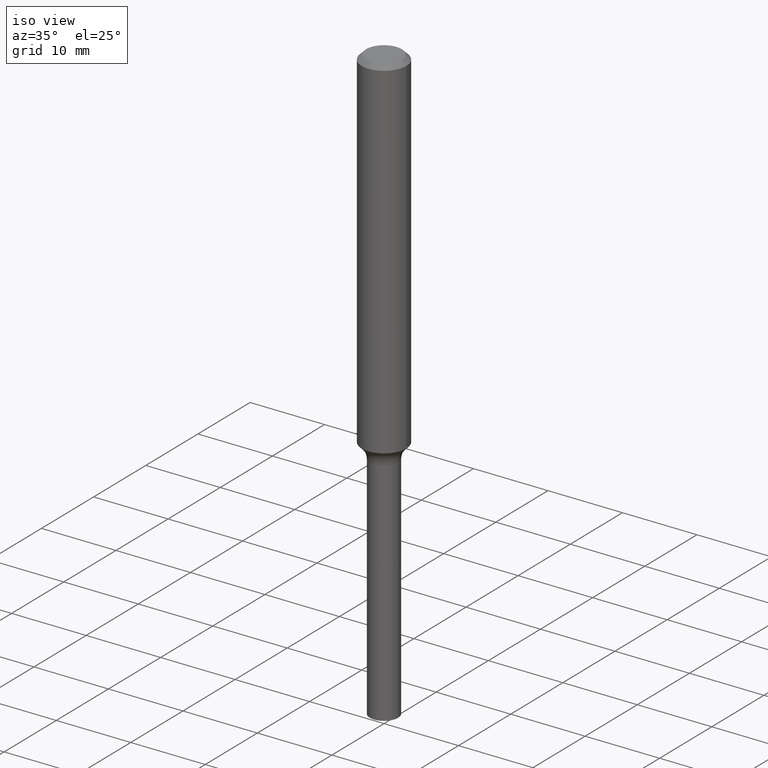
[diagram: clean part render]
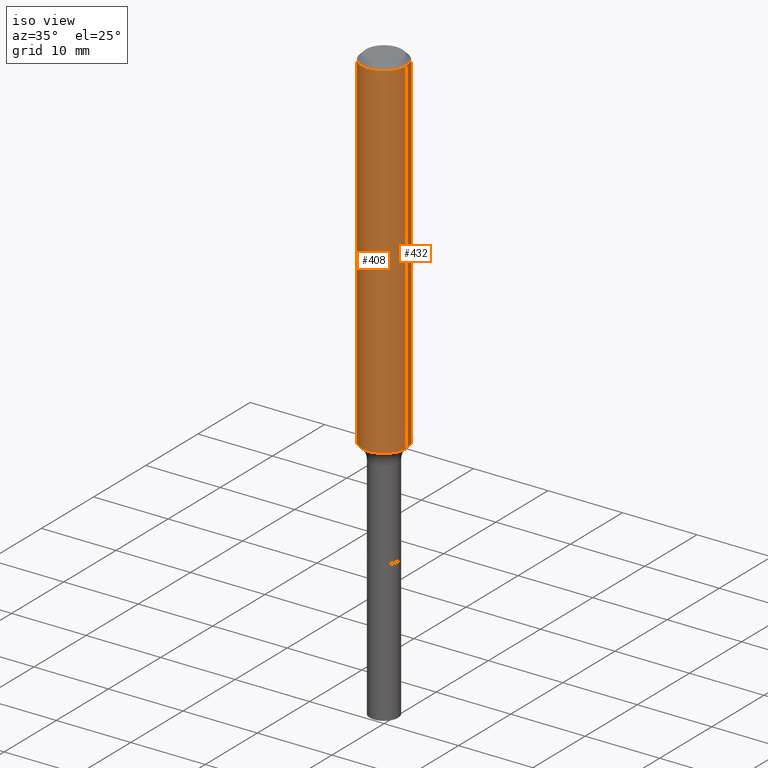
[diagram: same view with one multi-face feature highlighted, each face labeled with its STEP entity id]
A machine part, iso view. The highlighted faces form ONE feature: a constant-radius fillet chain: 2 tangent blend faces with common blend radius 2.9997 mm. The faces share edges in the B-rep.
Their STEP definitions:
[1] entity #408 (Cylinder):
#22 = AXIS2_PLACEMENT_3D ( 'NONE', #215, #371, #413 ) ;
#24 = CARTESIAN_POINT ( 'NONE',  ( -0.1181000000000001077, 8.391509709326790846E-16, -5.809262341591049389E-30 ) ) ;
#47 = VERTEX_POINT ( 'NONE', #91 ) ;
#60 = VECTOR ( 'NONE', #297, 39.37007874015748143 ) ;
#75 = DIRECTION ( 'NONE',  ( 1.000000000000000000, -6.982962677686266711E-15, 4.876176775795935793E-29 ) ) ;
#76 = VERTEX_POINT ( 'NONE', #236 ) ;
#81 = CARTESIAN_POINT ( 'NONE',  ( 0.1181000000000002187, -7.289701871487256587E-15, -1.851653596806735580 ) ) ;
#91 = CARTESIAN_POINT ( 'NONE',  ( -0.1180999999999999966, -2.434590413305311722E-15, -0.02362000000000014435 ) ) ;
#129 = CARTESIAN_POINT ( 'NONE',  ( 0.000000000000000000, 0.000000000000000000, 0.000000000000000000 ) ) ;
#147 = LINE ( 'NONE', #24, #60 ) ;
#148 = EDGE_CURVE ( 'NONE', #76, #47, #147, .T. ) ;
#166 = DIRECTION ( 'NONE',  ( 1.000000000000000000, -6.982962677686267499E-15, 0.000000000000000000 ) ) ;
#182 = EDGE_CURVE ( 'NONE', #47, #397, #496, .T. ) ;
#215 = CARTESIAN_POINT ( 'NONE',  ( 5.776197320209328408E-31, -8.246878922347560526E-17, -0.02362000000000014435 ) ) ;
#232 = FACE_OUTER_BOUND ( 'NONE', #447, .T. ) ;
#236 = CARTESIAN_POINT ( 'NONE',  ( -0.1181000000000002187, -5.625863008319827761E-15, -1.851653596806735580 ) ) ;
#238 = EDGE_CURVE ( 'NONE', #466, #397, #407, .T. ) ;
#245 = CARTESIAN_POINT ( 'NONE',  ( 0.1180999999999999966, -9.071566814582237199E-16, -0.02362000000000014435 ) ) ;
#257 = DIRECTION ( 'NONE',  ( -2.445468806185136877E-29, 3.491481338843145188E-15, 1.000000000000000000 ) ) ;
#262 = CARTESIAN_POINT ( 'NONE',  ( 0.1181000000000001077, -8.246878922347488542E-16, 5.758764772215005345E-30 ) ) ;
#297 = DIRECTION ( 'NONE',  ( -2.445468806185136877E-29, 3.491481338843145188E-15, 1.000000000000000000 ) ) ;
#299 = CIRCLE ( 'NONE', #442, 0.1181000000000002187 ) ;
#310 = ORIENTED_EDGE ( 'NONE', *, *, #182, .F. ) ;
#313 = ORIENTED_EDGE ( 'NONE', *, *, #238, .T. ) ;
#347 = ORIENTED_EDGE ( 'NONE', *, *, #444, .T. ) ;
#352 = ORIENTED_EDGE ( 'NONE', *, *, #148, .F. ) ;
#371 = DIRECTION ( 'NONE',  ( -2.445468806185136597E-29, 3.491481338843145583E-15, 1.000000000000000000 ) ) ;
#386 = DIRECTION ( 'NONE',  ( -2.445468806185136597E-29, 3.491481338843145583E-15, 1.000000000000000000 ) ) ;
#397 = VERTEX_POINT ( 'NONE', #245 ) ;
#405 = VECTOR ( 'NONE', #257, 39.37007874015748143 ) ;
#407 = LINE ( 'NONE', #262, #405 ) ;
#408 = ADVANCED_FACE ( 'NONE', ( #232 ), #438, .T. ) ;
#413 = DIRECTION ( 'NONE',  ( 1.000000000000000000, -6.982962677686266711E-15, 0.000000000000000000 ) ) ;
#428 = CARTESIAN_POINT ( 'NONE',  ( 4.528161110851381444E-29, -6.465013979252506747E-15, -1.851653596806735580 ) ) ;
#438 = CYLINDRICAL_SURFACE ( 'NONE', #468, 0.1181000000000001077 ) ;
#442 = AXIS2_PLACEMENT_3D ( 'NONE', #428, #386, #166 ) ;
#444 = EDGE_CURVE ( 'NONE', #76, #466, #299, .T. ) ;
#445 = DIRECTION ( 'NONE',  ( -2.445468806185136597E-29, 3.491481338843145583E-15, 1.000000000000000000 ) ) ;
#447 = EDGE_LOOP ( 'NONE', ( #352, #347, #313, #310 ) ) ;
#466 = VERTEX_POINT ( 'NONE', #81 ) ;
#468 = AXIS2_PLACEMENT_3D ( 'NONE', #129, #445, #75 ) ;
#496 = CIRCLE ( 'NONE', #22, 0.1180999999999999966 ) ;
[2] entity #432 (Cylinder):
#5 = EDGE_LOOP ( 'NONE', ( #29, #272, #437, #229 ) ) ;
#24 = CARTESIAN_POINT ( 'NONE',  ( -0.1181000000000001077, 8.391509709326790846E-16, -5.809262341591049389E-30 ) ) ;
#29 = ORIENTED_EDGE ( 'NONE', *, *, #126, .T. ) ;
#47 = VERTEX_POINT ( 'NONE', #91 ) ;
#50 = CARTESIAN_POINT ( 'NONE',  ( 5.776197320209328408E-31, -8.246878922347560526E-17, -0.02362000000000014435 ) ) ;
#60 = VECTOR ( 'NONE', #297, 39.37007874015748143 ) ;
#76 = VERTEX_POINT ( 'NONE', #236 ) ;
#81 = CARTESIAN_POINT ( 'NONE',  ( 0.1181000000000002187, -7.289701871487256587E-15, -1.851653596806735580 ) ) ;
#91 = CARTESIAN_POINT ( 'NONE',  ( -0.1180999999999999966, -2.434590413305311722E-15, -0.02362000000000014435 ) ) ;
#100 = AXIS2_PLACEMENT_3D ( 'NONE', #50, #353, #159 ) ;
#120 = DIRECTION ( 'NONE',  ( -2.445468806185136597E-29, 3.491481338843145583E-15, 1.000000000000000000 ) ) ;
#124 = CARTESIAN_POINT ( 'NONE',  ( 0.000000000000000000, 0.000000000000000000, 0.000000000000000000 ) ) ;
#126 = EDGE_CURVE ( 'NONE', #466, #76, #507, .T. ) ;
#147 = LINE ( 'NONE', #24, #60 ) ;
#148 = EDGE_CURVE ( 'NONE', #76, #47, #147, .T. ) ;
#159 = DIRECTION ( 'NONE',  ( 1.000000000000000000, -6.982962677686266711E-15, 0.000000000000000000 ) ) ;
#161 = DIRECTION ( 'NONE',  ( 1.000000000000000000, -6.982962677686266711E-15, 4.876176775795935793E-29 ) ) ;
#170 = DIRECTION ( 'NONE',  ( -2.445468806185136597E-29, 3.491481338843145583E-15, 1.000000000000000000 ) ) ;
#229 = ORIENTED_EDGE ( 'NONE', *, *, #238, .F. ) ;
#235 = FACE_OUTER_BOUND ( 'NONE', #5, .T. ) ;
#236 = CARTESIAN_POINT ( 'NONE',  ( -0.1181000000000002187, -5.625863008319827761E-15, -1.851653596806735580 ) ) ;
#238 = EDGE_CURVE ( 'NONE', #466, #397, #407, .T. ) ;
#245 = CARTESIAN_POINT ( 'NONE',  ( 0.1180999999999999966, -9.071566814582237199E-16, -0.02362000000000014435 ) ) ;
#257 = DIRECTION ( 'NONE',  ( -2.445468806185136877E-29, 3.491481338843145188E-15, 1.000000000000000000 ) ) ;
#262 = CARTESIAN_POINT ( 'NONE',  ( 0.1181000000000001077, -8.246878922347488542E-16, 5.758764772215005345E-30 ) ) ;
#272 = ORIENTED_EDGE ( 'NONE', *, *, #148, .T. ) ;
#283 = CIRCLE ( 'NONE', #100, 0.1180999999999999966 ) ;
#297 = DIRECTION ( 'NONE',  ( -2.445468806185136877E-29, 3.491481338843145188E-15, 1.000000000000000000 ) ) ;
#298 = AXIS2_PLACEMENT_3D ( 'NONE', #485, #170, #360 ) ;
#353 = DIRECTION ( 'NONE',  ( -2.445468806185136597E-29, 3.491481338843145583E-15, 1.000000000000000000 ) ) ;
#360 = DIRECTION ( 'NONE',  ( 1.000000000000000000, -6.982962677686267499E-15, 0.000000000000000000 ) ) ;
#397 = VERTEX_POINT ( 'NONE', #245 ) ;
#405 = VECTOR ( 'NONE', #257, 39.37007874015748143 ) ;
#407 = LINE ( 'NONE', #262, #405 ) ;
#424 = EDGE_CURVE ( 'NONE', #397, #47, #283, .T. ) ;
#432 = ADVANCED_FACE ( 'NONE', ( #235 ), #471, .T. ) ;
#437 = ORIENTED_EDGE ( 'NONE', *, *, #424, .F. ) ;
#462 = AXIS2_PLACEMENT_3D ( 'NONE', #124, #120, #161 ) ;
#466 = VERTEX_POINT ( 'NONE', #81 ) ;
#471 = CYLINDRICAL_SURFACE ( 'NONE', #462, 0.1181000000000001077 ) ;
#485 = CARTESIAN_POINT ( 'NONE',  ( 4.528161110851381444E-29, -6.465013979252506747E-15, -1.851653596806735580 ) ) ;
#507 = CIRCLE ( 'NONE', #298, 0.1181000000000002187 ) ;